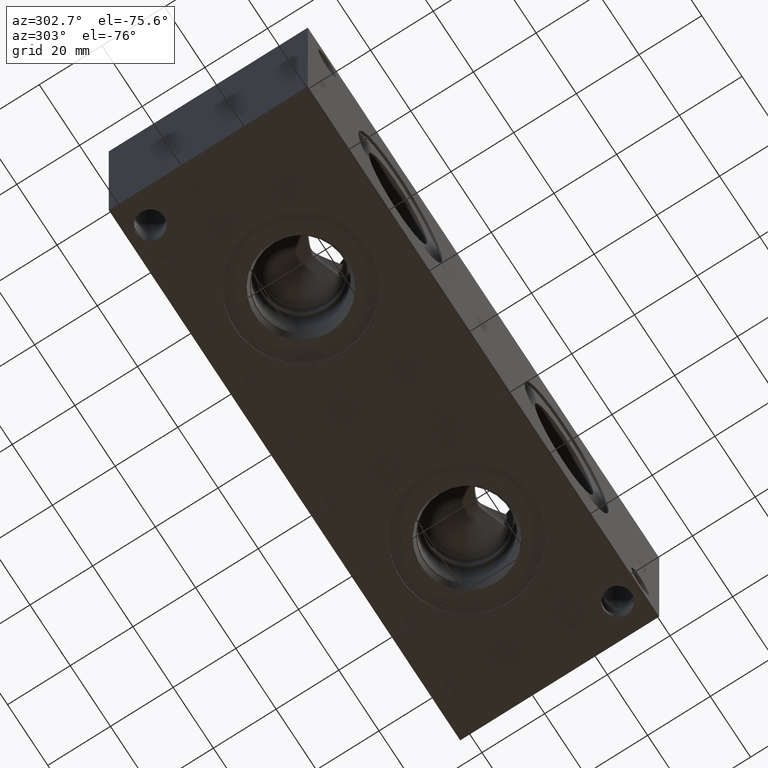
[diagram: clean part render]
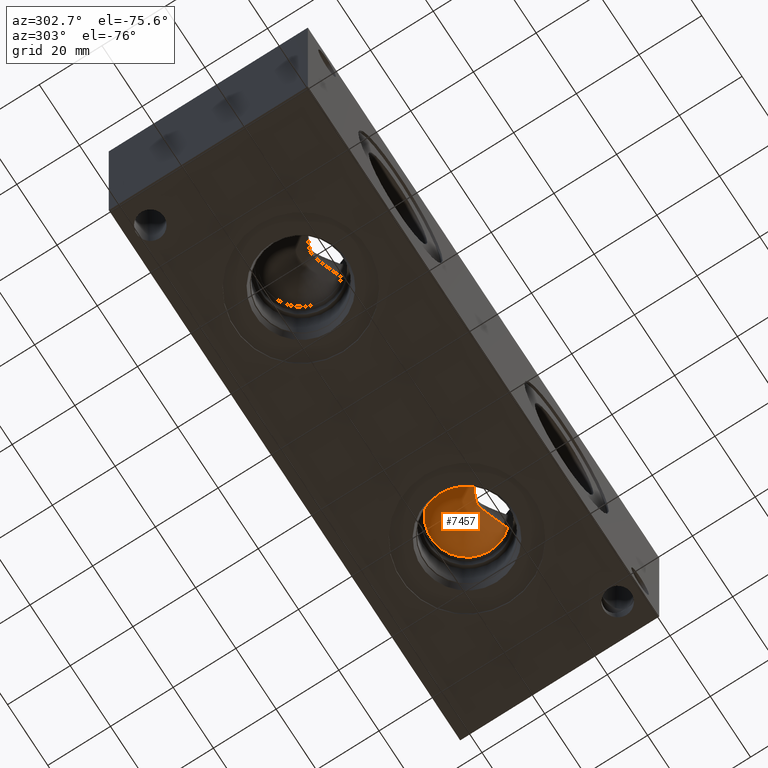
[diagram: same view with one face highlighted and labeled with its STEP entity id]
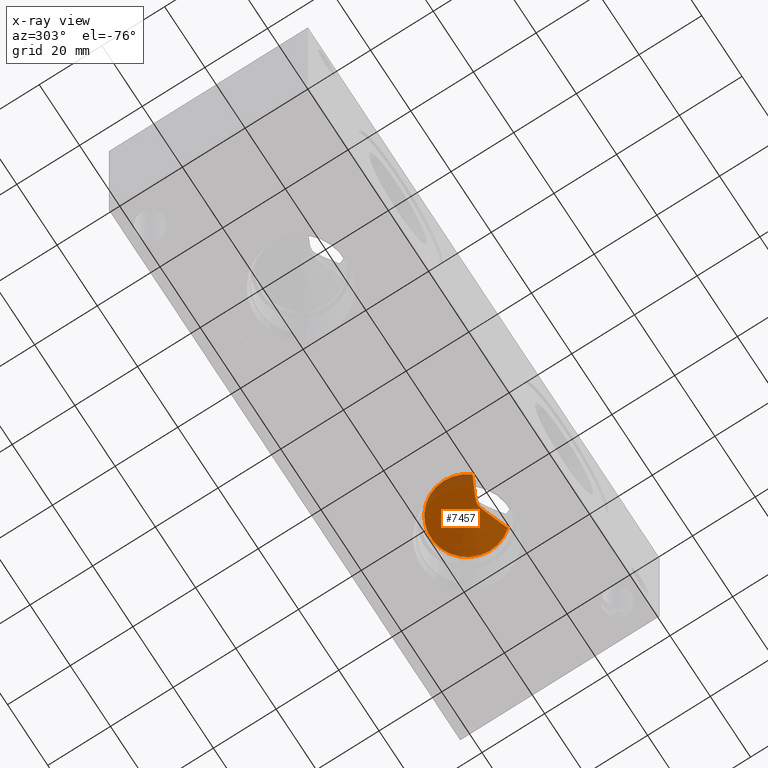
[diagram: x-ray of the same camera — body ghosted, the highlighted face saturated]
A machine part, auxiliary view. The second image highlights one B-rep face of the part: STEP entity #7457.
The next image is the same camera in x-ray: the body ghosted, the highlighted face saturated — about 11% of this face is hidden behind the body in this view.
In plain terms, the highlighted conical surface has half-angle 60 deg.
Its self-contained STEP definition (entity closure, byte-faithful):
#36=CONICAL_SURFACE('',#7784,5.7531,1.0471975511966);
#115=CIRCLE('',#7785,11.5062);
#116=CIRCLE('',#7786,11.5062);
#436=B_SPLINE_CURVE_WITH_KNOTS('',3,(#12456,#12457,#12458,#12459,#12460,
#12461,#12462,#12463,#12464,#12465,#12466,#12467,#12468,#12469,#12470,#12471,
#12472,#12473,#12474,#12475,#12476,#12477),.UNSPECIFIED.,.F.,.F.,(4,2,2,
2,2,2,2,2,2,2,4),(2.02414178422364,2.44755953079405,2.85548611925973,3.05944941349256,
3.16143106060898,3.2634127077254,3.36539435484182,3.46737600195824,3.67133929619107,
4.07926588465675,4.50268363122717),.UNSPECIFIED.);
#848=FACE_OUTER_BOUND('',#1255,.T.);
#1255=EDGE_LOOP('',(#6213,#6214,#6215,#6216,#6217));
#2000=LINE('',#12481,#2714);
#2714=VECTOR('',#9119,5.7531);
#3348=VERTEX_POINT('',#12454);
#3349=VERTEX_POINT('',#12455);
#3350=VERTEX_POINT('',#12478);
#3351=VERTEX_POINT('',#12480);
#4327=EDGE_CURVE('',#3348,#3349,#436,.T.);
#4328=EDGE_CURVE('',#3348,#3350,#115,.T.);
#4329=EDGE_CURVE('',#3350,#3351,#2000,.T.);
#4330=EDGE_CURVE('',#3350,#3349,#116,.T.);
#6213=ORIENTED_EDGE('',*,*,#4327,.F.);
#6214=ORIENTED_EDGE('',*,*,#4328,.T.);
#6215=ORIENTED_EDGE('',*,*,#4329,.T.);
#6216=ORIENTED_EDGE('',*,*,#4329,.F.);
#6217=ORIENTED_EDGE('',*,*,#4330,.T.);
#7457=ADVANCED_FACE('',(#848),#36,.F.);
#7784=AXIS2_PLACEMENT_3D('',#12453,#9115,#9116);
#7785=AXIS2_PLACEMENT_3D('',#12479,#9117,#9118);
#7786=AXIS2_PLACEMENT_3D('',#12482,#9120,#9121);
#9115=DIRECTION('center_axis',(0.,0.,-1.));
#9116=DIRECTION('ref_axis',(1.,0.,0.));
#9117=DIRECTION('center_axis',(0.,0.,-1.));
#9118=DIRECTION('ref_axis',(1.,0.,0.));
#9119=DIRECTION('',(0.866025403784439,-1.06057523872491E-16,0.5));
#9120=DIRECTION('center_axis',(0.,0.,-1.));
#9121=DIRECTION('ref_axis',(1.,0.,0.));
#12453=CARTESIAN_POINT('Origin',(128.5748,31.75,28.1109438336748));
#12454=CARTESIAN_POINT('',(119.77186799977,24.3404773001675,24.78939));
#12455=CARTESIAN_POINT('',(137.37773200023,24.3404773001675,24.78939));
#12456=CARTESIAN_POINT('Ctrl Pts',(119.77186799977,24.3404773001675,24.78939));
#12457=CARTESIAN_POINT('Ctrl Pts',(120.795804165037,24.8781816467988,25.441583403471));
#12458=CARTESIAN_POINT('Ctrl Pts',(121.797512672039,25.4022862071663,26.0749703333354));
#12459=CARTESIAN_POINT('Ctrl Pts',(123.727500893457,26.3988534717776,27.2682221497889));
#12460=CARTESIAN_POINT('Ctrl Pts',(124.638884151244,26.8665779999652,27.8232929600352));
#12461=CARTESIAN_POINT('Ctrl Pts',(126.011165247229,27.5245012542527,28.5828181936427));
#12462=CARTESIAN_POINT('Ctrl Pts',(126.461707346594,27.7346725440007,28.8212760428111));
#12463=CARTESIAN_POINT('Ctrl Pts',(127.177718317776,28.0184978243897,29.134484592998));
#12464=CARTESIAN_POINT('Ctrl Pts',(127.421306310055,28.1073718094077,29.2308245587932));
#12465=CARTESIAN_POINT('Ctrl Pts',(127.950491566143,28.2529939942306,29.3862317913662));
#12466=CARTESIAN_POINT('Ctrl Pts',(128.234861176279,28.3118540956523,29.4474832039614));
#12467=CARTESIAN_POINT('Ctrl Pts',(128.914738823721,28.3118540956523,29.4474832039614));
#12468=CARTESIAN_POINT('Ctrl Pts',(129.199108433857,28.2529939942306,29.3862317913662));
#12469=CARTESIAN_POINT('Ctrl Pts',(129.728293689945,28.1073718094077,29.2308245587932));
#12470=CARTESIAN_POINT('Ctrl Pts',(129.971881682224,28.0184978243897,29.134484592998));
#12471=CARTESIAN_POINT('Ctrl Pts',(130.687892653406,27.7346725440007,28.8212760428111));
#12472=CARTESIAN_POINT('Ctrl Pts',(131.138434752771,27.5245012542527,28.5828181936428));
#12473=CARTESIAN_POINT('Ctrl Pts',(132.510715848756,26.8665779999652,27.8232929600352));
#12474=CARTESIAN_POINT('Ctrl Pts',(133.422099106543,26.3988534717776,27.2682221497889));
#12475=CARTESIAN_POINT('Ctrl Pts',(135.352087327961,25.4022862071663,26.0749703333354));
#12476=CARTESIAN_POINT('Ctrl Pts',(136.353795834963,24.8781816467988,25.441583403471));
#12477=CARTESIAN_POINT('Ctrl Pts',(137.37773200023,24.3404773001675,24.78939));
#12478=CARTESIAN_POINT('',(117.0686,31.75,24.78939));
#12479=CARTESIAN_POINT('Origin',(128.5748,31.75,24.78939));
#12480=CARTESIAN_POINT('',(128.5748,31.75,31.4324976673497));
#12481=CARTESIAN_POINT('',(122.8217,31.75,28.1109438336748));
#12482=CARTESIAN_POINT('Origin',(128.5748,31.75,24.78939));